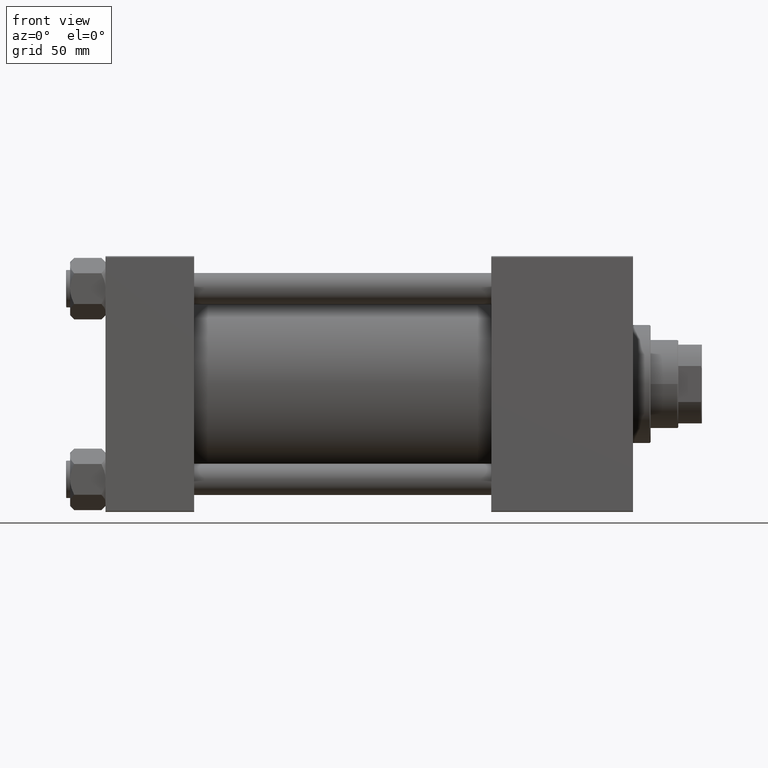
[diagram: clean part render]
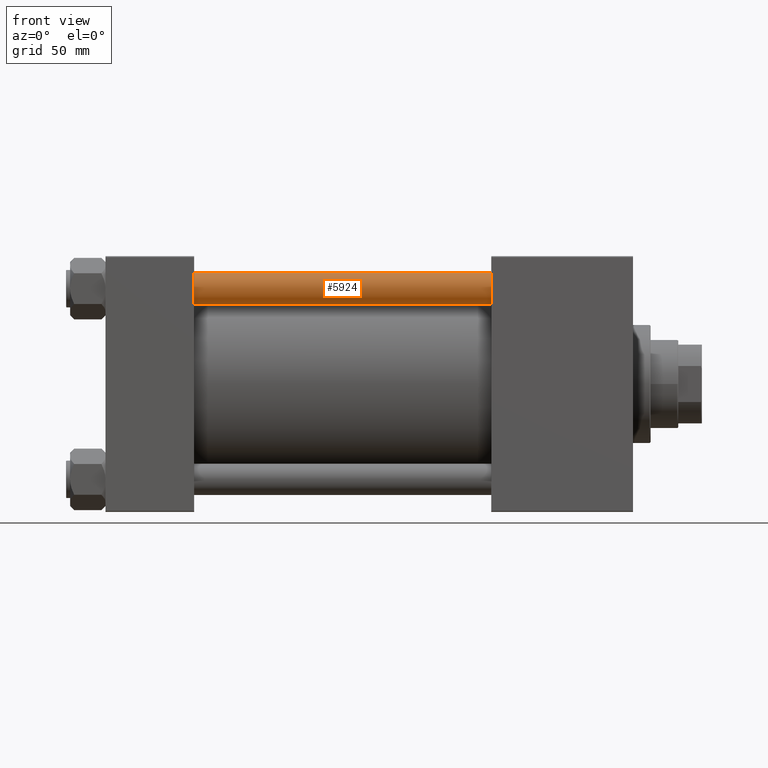
[diagram: same view with one face highlighted and labeled with its STEP entity id]
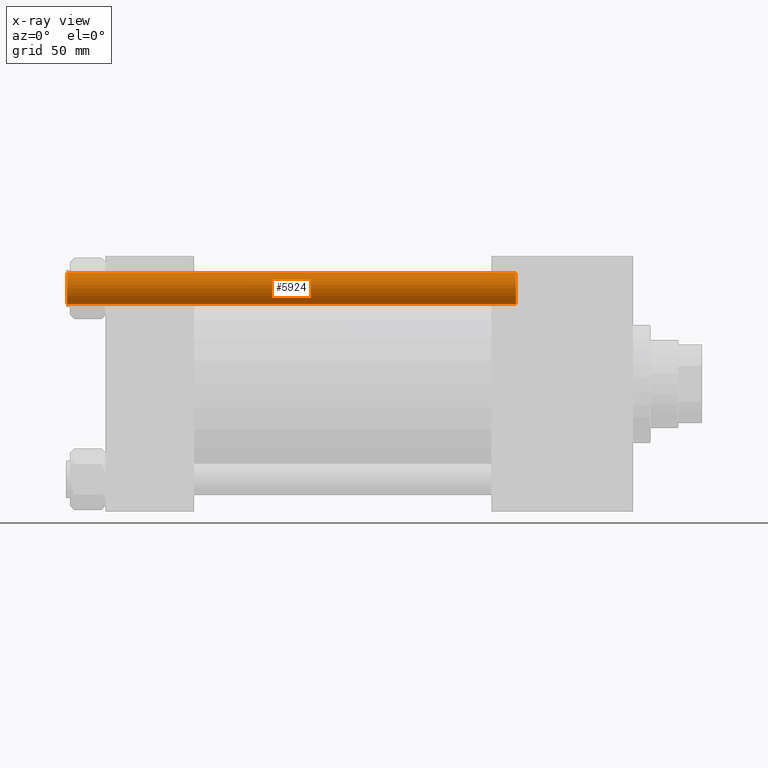
[diagram: x-ray of the same camera — body ghosted, the highlighted face saturated]
A machine part, front view. The second image highlights one B-rep face of the part: STEP entity #5924.
The next image is the same camera in x-ray: the body ghosted, the highlighted face saturated — about 0% of this face is hidden behind the body in this view.
In plain terms, the highlighted cylindrical surface (edge-blend (fillet) strip) has radius 8 mm, axis along (1, 0, -0).
Its self-contained STEP definition (entity closure, byte-faithful):
#838 = DIRECTION ( 'NONE',  ( -0.000000000000000000, -0.000000000000000000, -1.000000000000000000 ) ) ;
#1123 = EDGE_CURVE ( 'NONE', #4775, #7082, #15585, .T. ) ;
#4775 = VERTEX_POINT ( 'NONE', #9888 ) ;
#5235 = DIRECTION ( 'NONE',  ( 0.000000000000000000, 0.000000000000000000, -1.000000000000000000 ) ) ;
#5924 = ADVANCED_FACE ( 'NONE', ( #11878 ), #24200, .T. ) ;
#7082 = VERTEX_POINT ( 'NONE', #46272 ) ;
#9888 = CARTESIAN_POINT ( 'NONE',  ( -8.000000000000000000, 0.000000000000000000, 228.5000000000000853 ) ) ;
#11227 = DIRECTION ( 'NONE',  ( -0.000000000000000000, -0.000000000000000000, 1.000000000000000000 ) ) ;
#11436 = ORIENTED_EDGE ( 'NONE', *, *, #1123, .F. ) ;
#11878 = FACE_OUTER_BOUND ( 'NONE', #24871, .T. ) ;
#12378 = VERTEX_POINT ( 'NONE', #13169 ) ;
#13169 = CARTESIAN_POINT ( 'NONE',  ( 8.000000000000000000, 9.797174393178823685E-16, 0.5000000000001392220 ) ) ;
#14574 = DIRECTION ( 'NONE',  ( 1.000000000000000000, 0.000000000000000000, 0.000000000000000000 ) ) ;
#14942 = EDGE_CURVE ( 'NONE', #12378, #7082, #47112, .T. ) ;
#15230 = CARTESIAN_POINT ( 'NONE',  ( 8.000000000000000000, 9.797174393178823685E-16, 228.5000000000000853 ) ) ;
#15585 = LINE ( 'NONE', #15832, #45531 ) ;
#15832 = CARTESIAN_POINT ( 'NONE',  ( -8.000000000000000000, 0.000000000000000000, 229.0000000000000000 ) ) ;
#17049 = DIRECTION ( 'NONE',  ( 1.000000000000000000, 0.000000000000000000, 0.000000000000000000 ) ) ;
#18189 = ORIENTED_EDGE ( 'NONE', *, *, #44516, .T. ) ;
#19066 = VECTOR ( 'NONE', #40420, 1000.000000000000000 ) ;
#20251 = ORIENTED_EDGE ( 'NONE', *, *, #30626, .T. ) ;
#21666 = CARTESIAN_POINT ( 'NONE',  ( 0.000000000000000000, 0.000000000000000000, 228.5000000000000853 ) ) ;
#24200 = CYLINDRICAL_SURFACE ( 'NONE', #43235, 8.000000000000000000 ) ;
#24871 = EDGE_LOOP ( 'NONE', ( #20251, #18189, #40220, #11436 ) ) ;
#25283 = AXIS2_PLACEMENT_3D ( 'NONE', #21666, #5235, #17049 ) ;
#29118 = CARTESIAN_POINT ( 'NONE',  ( 8.000000000000000000, 9.797174393178823685E-16, 229.0000000000000000 ) ) ;
#29494 = VERTEX_POINT ( 'NONE', #15230 ) ;
#30626 = EDGE_CURVE ( 'NONE', #4775, #29494, #50705, .T. ) ;
#33481 = LINE ( 'NONE', #29118, #19066 ) ;
#35773 = DIRECTION ( 'NONE',  ( -1.000000000000000000, 0.000000000000000000, 0.000000000000000000 ) ) ;
#37976 = CARTESIAN_POINT ( 'NONE',  ( 0.000000000000000000, 0.000000000000000000, 0.5000000000001392220 ) ) ;
#40147 = CARTESIAN_POINT ( 'NONE',  ( 0.000000000000000000, 0.000000000000000000, 229.0000000000000000 ) ) ;
#40220 = ORIENTED_EDGE ( 'NONE', *, *, #14942, .T. ) ;
#40420 = DIRECTION ( 'NONE',  ( -0.000000000000000000, -0.000000000000000000, -1.000000000000000000 ) ) ;
#43235 = AXIS2_PLACEMENT_3D ( 'NONE', #40147, #838, #35773 ) ;
#44516 = EDGE_CURVE ( 'NONE', #29494, #12378, #33481, .T. ) ;
#45531 = VECTOR ( 'NONE', #46436, 1000.000000000000000 ) ;
#46272 = CARTESIAN_POINT ( 'NONE',  ( -8.000000000000000000, 0.000000000000000000, 0.5000000000001392220 ) ) ;
#46436 = DIRECTION ( 'NONE',  ( -0.000000000000000000, -0.000000000000000000, -1.000000000000000000 ) ) ;
#47112 = CIRCLE ( 'NONE', #49580, 8.000000000000000000 ) ;
#49580 = AXIS2_PLACEMENT_3D ( 'NONE', #37976, #11227, #14574 ) ;
#50705 = CIRCLE ( 'NONE', #25283, 8.000000000000000000 ) ;